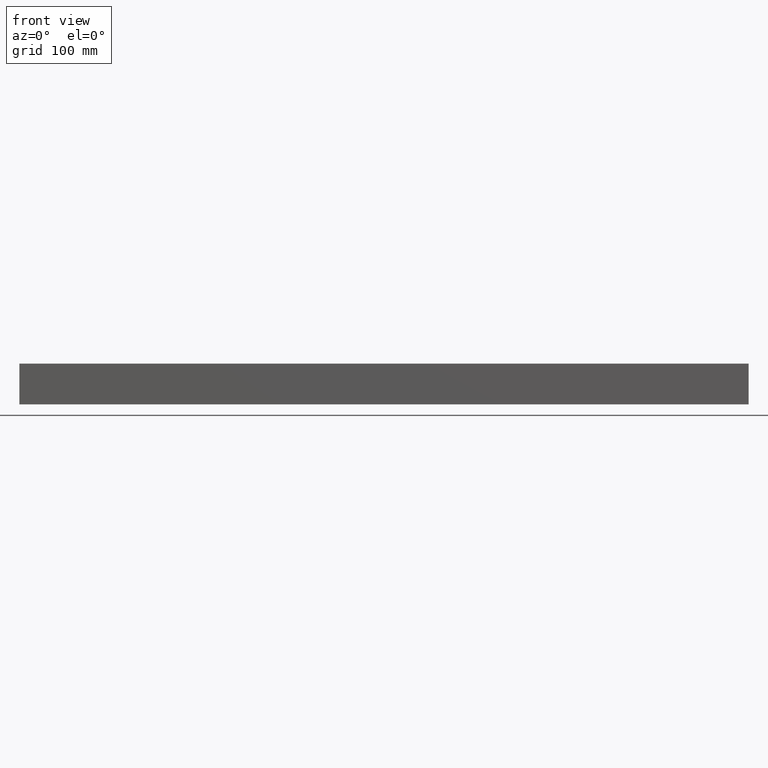
[diagram: clean part render]
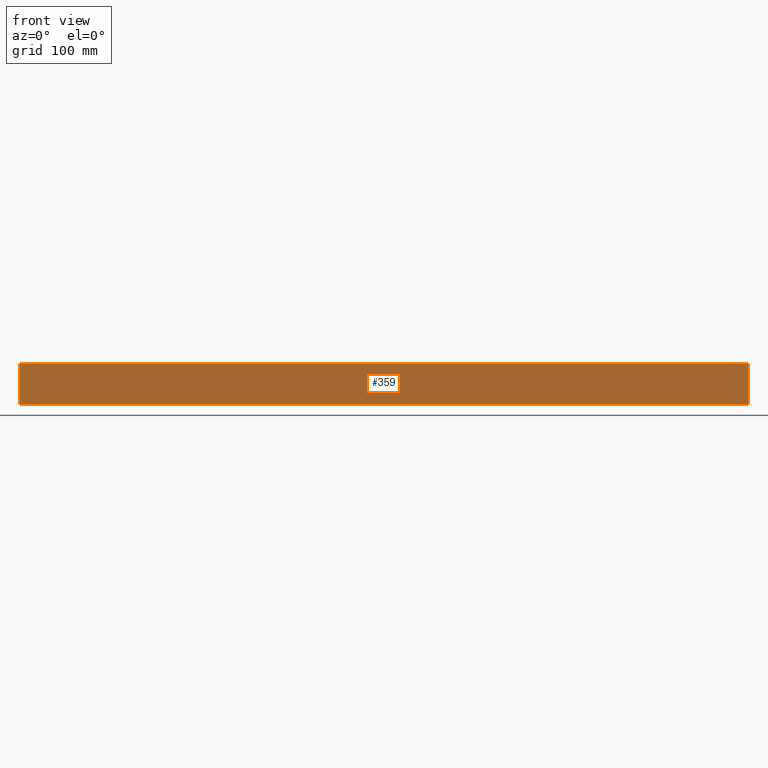
[diagram: same view with one face highlighted and labeled with its STEP entity id]
A machine part, front view. The second image highlights one B-rep face of the part: STEP entity #359.
In plain terms, the highlighted planar face has unit normal (0, -1, 0).
Its self-contained STEP definition (entity closure, byte-faithful):
#4 = FACE_OUTER_BOUND ( 'NONE', #65, .T. ) ;
#9 = EDGE_CURVE ( 'NONE', #261, #232, #356, .T. ) ;
#17 = VERTEX_POINT ( 'NONE', #329 ) ;
#32 = DIRECTION ( 'NONE',  ( 1.000000000000000000, 3.061616997868382648E-16, -0.000000000000000000 ) ) ;
#33 = ORIENTED_EDGE ( 'NONE', *, *, #9, .T. ) ;
#65 = EDGE_LOOP ( 'NONE', ( #294, #98, #33, #125 ) ) ;
#74 = DIRECTION ( 'NONE',  ( 0.000000000000000000, -3.469446951953611033E-15, -1.000000000000000000 ) ) ;
#80 = DIRECTION ( 'NONE',  ( 1.000000000000000000, 3.061616997868382648E-16, -0.000000000000000000 ) ) ;
#81 = AXIS2_PLACEMENT_3D ( 'NONE', #83, #256, #201 ) ;
#83 = CARTESIAN_POINT ( 'NONE',  ( -447.5000000000000000, -25.00000000000003553, 25.00000000000011013 ) ) ;
#87 = VECTOR ( 'NONE', #212, 1000.000000000000000 ) ;
#90 = VERTEX_POINT ( 'NONE', #184 ) ;
#98 = ORIENTED_EDGE ( 'NONE', *, *, #194, .F. ) ;
#106 = VECTOR ( 'NONE', #80, 1000.000000000000000 ) ;
#125 = ORIENTED_EDGE ( 'NONE', *, *, #354, .T. ) ;
#138 = CARTESIAN_POINT ( 'NONE',  ( -447.5000000000000000, -25.00000000000003553, 25.00000000000011013 ) ) ;
#171 = CARTESIAN_POINT ( 'NONE',  ( -447.5000000000000000, -25.00000000000003553, 25.00000000000011013 ) ) ;
#172 = LINE ( 'NONE', #231, #291 ) ;
#184 = CARTESIAN_POINT ( 'NONE',  ( 447.5000000000000000, -24.99999999999976197, 25.00000000000011013 ) ) ;
#194 = EDGE_CURVE ( 'NONE', #261, #90, #315, .T. ) ;
#201 = DIRECTION ( 'NONE',  ( 0.000000000000000000, -3.469446951953611033E-15, -1.000000000000000000 ) ) ;
#212 = DIRECTION ( 'NONE',  ( 0.000000000000000000, -3.469446951953611033E-15, -1.000000000000000000 ) ) ;
#215 = VECTOR ( 'NONE', #74, 1000.000000000000000 ) ;
#217 = LINE ( 'NONE', #334, #215 ) ;
#231 = CARTESIAN_POINT ( 'NONE',  ( -447.5000000000000000, -25.00000000000020961, -24.99999999999993250 ) ) ;
#232 = VERTEX_POINT ( 'NONE', #340 ) ;
#256 = DIRECTION ( 'NONE',  ( 3.061616997868382648E-16, -1.000000000000000000, 3.469446951953611033E-15 ) ) ;
#261 = VERTEX_POINT ( 'NONE', #171 ) ;
#275 = EDGE_CURVE ( 'NONE', #90, #17, #217, .T. ) ;
#291 = VECTOR ( 'NONE', #32, 1000.000000000000000 ) ;
#294 = ORIENTED_EDGE ( 'NONE', *, *, #275, .F. ) ;
#315 = LINE ( 'NONE', #138, #106 ) ;
#327 = CARTESIAN_POINT ( 'NONE',  ( -447.5000000000000000, -25.00000000000003553, 25.00000000000011013 ) ) ;
#329 = CARTESIAN_POINT ( 'NONE',  ( 447.5000000000000000, -24.99999999999993605, -24.99999999999993250 ) ) ;
#334 = CARTESIAN_POINT ( 'NONE',  ( 447.5000000000000000, -24.99999999999976197, 25.00000000000011013 ) ) ;
#340 = CARTESIAN_POINT ( 'NONE',  ( -447.5000000000000000, -25.00000000000020961, -24.99999999999993250 ) ) ;
#344 = PLANE ( 'NONE',  #81 ) ;
#354 = EDGE_CURVE ( 'NONE', #232, #17, #172, .T. ) ;
#356 = LINE ( 'NONE', #327, #87 ) ;
#359 = ADVANCED_FACE ( 'NONE', ( #4 ), #344, .T. ) ;